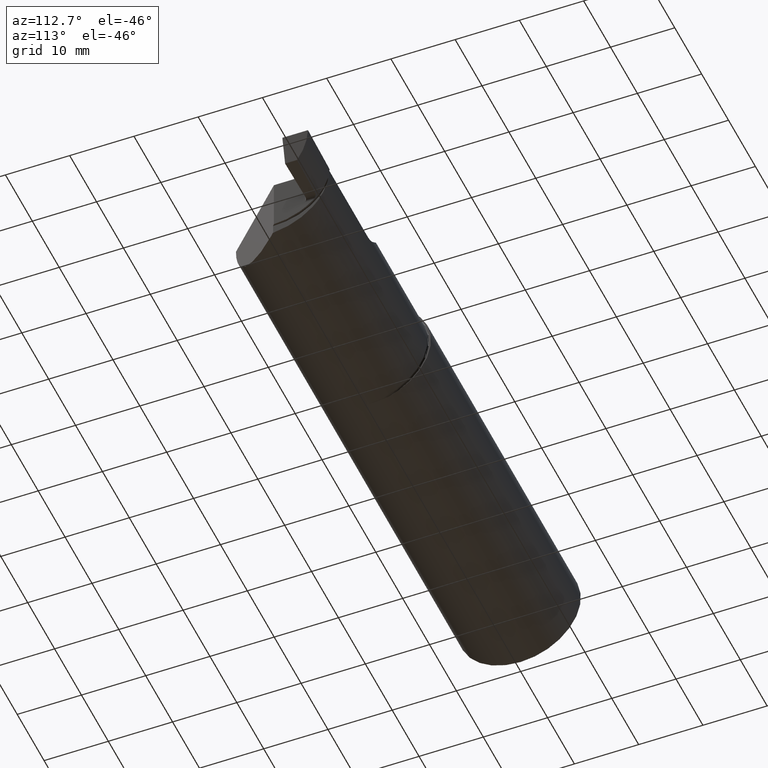
[diagram: clean part render]
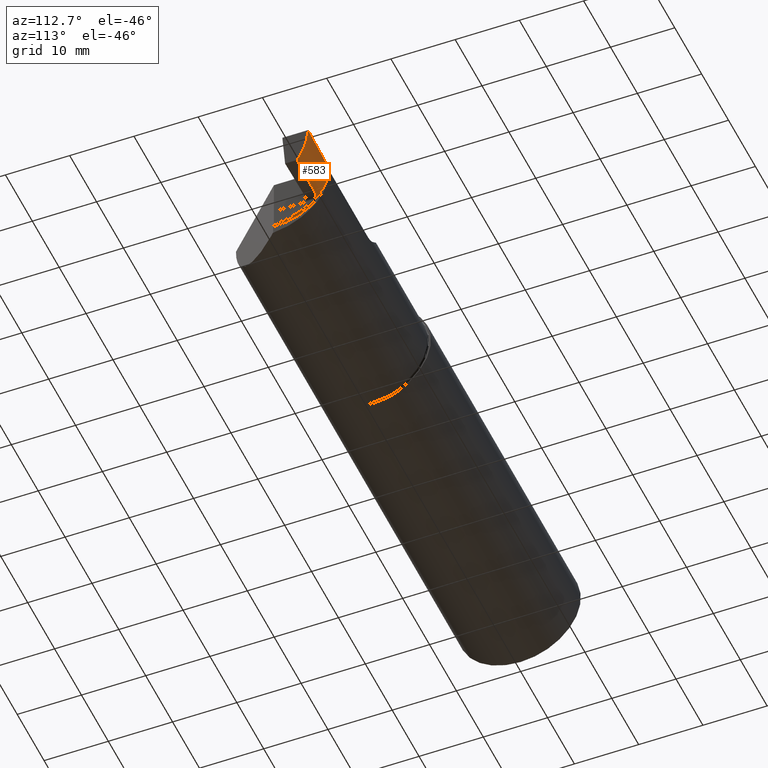
[diagram: same view with one face highlighted and labeled with its STEP entity id]
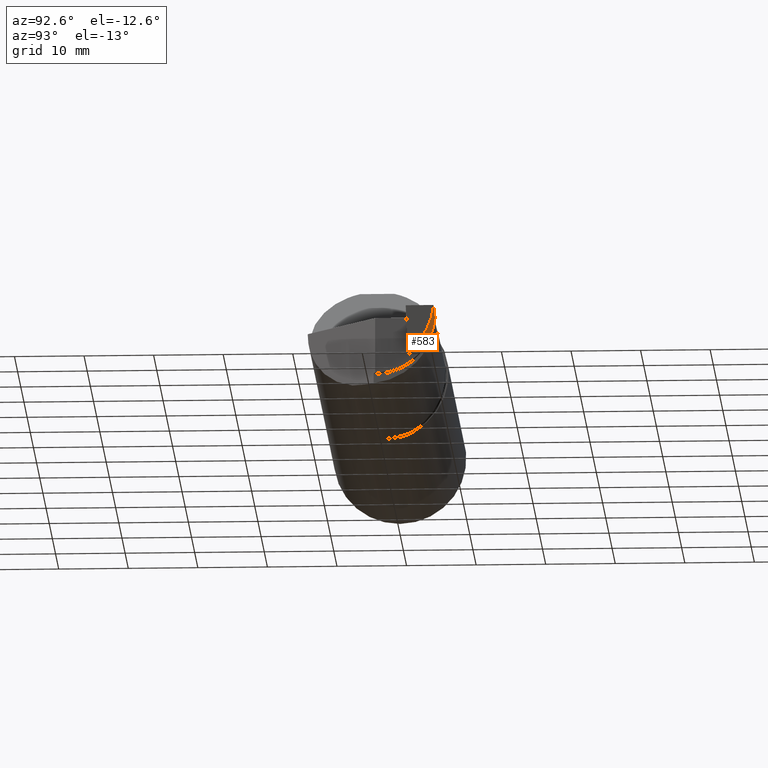
[diagram: same view with one face highlighted and labeled with its STEP entity id]
A machine part, auxiliary view. The second image highlights one B-rep face of the part: STEP entity #583.
A second angle (auxiliary view) of the same face is appended — the face is thin or edge-on in the first view.
In plain terms, the highlighted cylindrical surface (partial cylindrical patch) has radius 8.763 mm, axis along (-0.9998, -0.0175, -0).
Its self-contained STEP definition (entity closure, byte-faithful):
#1 = VERTEX_POINT ( 'NONE', #12 ) ;
#12 = CARTESIAN_POINT ( 'NONE',  ( 3.674900000000000055, 0.02505000000000018670, -0.3169667607336639770 ) ) ;
#16 = VECTOR ( 'NONE', #655, 39.37007874015748854 ) ;
#47 = ORIENTED_EDGE ( 'NONE', *, *, #893, .T. ) ;
#57 = CARTESIAN_POINT ( 'NONE',  ( 3.674900000000000055, 0.2007529595129726452, -0.2799386420960721655 ) ) ;
#63 = CARTESIAN_POINT ( 'NONE',  ( 3.692162470736613411, 0.2872280279564572991, -0.1909520701713809665 ) ) ;
#70 = CARTESIAN_POINT ( 'NONE',  ( 3.668018814154919482, 0.3584204735952503662, -0.04020578662791843283 ) ) ;
#71 = VERTEX_POINT ( 'NONE', #368 ) ;
#80 = CARTESIAN_POINT ( 'NONE',  ( 4.000000000000000000, 0.3698492383597805078, -8.579710105101827071E-16 ) ) ;
#88 = CARTESIAN_POINT ( 'NONE',  ( 4.346036695863296551, 0.03197506066377663048, 0.02800000000000001446 ) ) ;
#187 = ORIENTED_EDGE ( 'NONE', *, *, #271, .F. ) ;
#188 = CARTESIAN_POINT ( 'NONE',  ( 3.671139501632731950, 0.02019468631861981792, 0.02800000000000001446 ) ) ;
#196 = ORIENTED_EDGE ( 'NONE', *, *, #528, .T. ) ;
#201 = ORIENTED_EDGE ( 'NONE', *, *, #907, .T. ) ;
#218 = CARTESIAN_POINT ( 'NONE',  ( 3.672380531148330629, 0.02253053114833035095, -0.3169944607393478941 ) ) ;
#220 = CARTESIAN_POINT ( 'NONE',  ( 3.666422624578944411, 0.3550591457681474550, -0.05503370182980074632 ) ) ;
#226 =( BOUNDED_CURVE ( )  B_SPLINE_CURVE ( 3, ( #453, #1023, #57, #945 ),
 .UNSPECIFIED., .F., .F. ) 
 B_SPLINE_CURVE_WITH_KNOTS ( ( 4, 4 ),
 ( 1.584677771002642510, 2.360088669448001220 ),
 .UNSPECIFIED. ) 
 CURVE ( )  GEOMETRIC_REPRESENTATION_ITEM ( )  RATIONAL_B_SPLINE_CURVE ( ( 1.000000000000000000, 0.9505193239401498184, 0.9505193239401498184, 1.000000000000000000 ) ) 
 REPRESENTATION_ITEM ( '' )  );
#248 = CYLINDRICAL_SURFACE ( 'NONE', #1039, 0.3449999999999999734 ) ;
#262 = EDGE_CURVE ( 'NONE', #1006, #1, #486, .T. ) ;
#271 = EDGE_CURVE ( 'NONE', #1, #501, #226, .T. ) ;
#322 = DIRECTION ( 'NONE',  ( 0.01745240643726903712, -0.9998476951563913806, 0.000000000000000000 ) ) ;
#340 = EDGE_CURVE ( 'NONE', #523, #71, #482, .T. ) ;
#368 = CARTESIAN_POINT ( 'NONE',  ( 3.976670933428447796, 0.2929651983457154940, -0.1899999999999999467 ) ) ;
#373 = CARTESIAN_POINT ( 'NONE',  ( 3.668389146974766479, 0.3593930680788355314, -0.03522707299234034695 ) ) ;
#380 = CARTESIAN_POINT ( 'NONE',  ( 3.699899999999999967, 0.2881341437324823618, -0.1899999999999999745 ) ) ;
#382 = CARTESIAN_POINT ( 'NONE',  ( 3.991386371343247585, 0.3639856462570090212, -0.07015237578252282724 ) ) ;
#390 = CARTESIAN_POINT ( 'NONE',  ( 3.682951662067313503, 0.2825631292315248233, -0.1963381982667273817 ) ) ;
#412 = CARTESIAN_POINT ( 'NONE',  ( 4.340035478385360079, 0.3757845797128895882, 0.000000000000000000 ) ) ;
#423 = DIRECTION ( 'NONE',  ( 0.9998476951563914916, 0.01745240643726934937, -0.000000000000000000 ) ) ;
#436 = CIRCLE ( 'NONE', #589, 0.3449999999999999734 ) ;
#453 = CARTESIAN_POINT ( 'NONE',  ( 3.674900000000000055, 0.02505000000000018670, -0.3169667607336639770 ) ) ;
#458 = CARTESIAN_POINT ( 'NONE',  ( 3.674900000000000055, 0.02505000000000018670, -0.3169667607336639770 ) ) ;
#461 = CARTESIAN_POINT ( 'NONE',  ( 3.673640303505554261, 0.02379030350555431939, -0.3169839404006205563 ) ) ;
#482 = LINE ( 'NONE', #962, #596 ) ;
#486 =( BOUNDED_CURVE ( )  B_SPLINE_CURVE ( 3, ( #597, #218, #461, #458 ),
 .UNSPECIFIED., .F., .F. ) 
 B_SPLINE_CURVE_WITH_KNOTS ( ( 4, 4 ),
 ( 1.573915743438679016, 1.584677771002641400 ),
 .UNSPECIFIED. ) 
 CURVE ( )  GEOMETRIC_REPRESENTATION_ITEM ( )  RATIONAL_B_SPLINE_CURVE ( ( 1.000000000000000000, 0.9999903482535152932, 0.9999903482535152932, 1.000000000000000000 ) ) 
 REPRESENTATION_ITEM ( '' )  );
#492 = CARTESIAN_POINT ( 'NONE',  ( 4.000000000000000000, 0.3698492383597805078, -8.579710105101827071E-16 ) ) ;
#501 = VERTEX_POINT ( 'NONE', #600 ) ;
#505 = DIRECTION ( 'NONE',  ( 0.01745240643726903712, -0.9998476951563913806, 0.000000000000000000 ) ) ;
#514 = ORIENTED_EDGE ( 'NONE', *, *, #535, .T. ) ;
#523 = VERTEX_POINT ( 'NONE', #524 ) ;
#524 = CARTESIAN_POINT ( 'NONE',  ( 3.699899999999999967, 0.2881341437324823618, -0.1899999999999999745 ) ) ;
#528 = EDGE_CURVE ( 'NONE', #928, #771, #925, .T. ) ;
#534 = CARTESIAN_POINT ( 'NONE',  ( 3.671120719405338573, 0.02127071940533841604, -0.3169983214452270492 ) ) ;
#535 = EDGE_CURVE ( 'NONE', #523, #501, #849, .T. ) ;
#542 = CARTESIAN_POINT ( 'NONE',  ( 3.669292897679496068, 0.3619771523335102992, -0.02023052563417465990 ) ) ;
#547 = CARTESIAN_POINT ( 'NONE',  ( 3.667001602278190386, 0.3562519655896058679, -0.05011578601074451883 ) ) ;
#552 =( BOUNDED_CURVE ( )  B_SPLINE_CURVE ( 3, ( #957, #705, #382, #80 ),
 .UNSPECIFIED., .F., .F. ) 
 B_SPLINE_CURVE_WITH_KNOTS ( ( 4, 4 ),
 ( 1.028007330616670600, 1.630740202856560517 ),
 .UNSPECIFIED. ) 
 CURVE ( )  GEOMETRIC_REPRESENTATION_ITEM ( )  RATIONAL_B_SPLINE_CURVE ( ( 1.000000000000000000, 0.9699545252598007483, 0.9699545252598007483, 1.000000000000000000 ) ) 
 REPRESENTATION_ITEM ( '' )  );
#557 = CARTESIAN_POINT ( 'NONE',  ( 3.669803184662418616, 0.3640856315089771589, 1.002542740155892539E-15 ) ) ;
#583 = ADVANCED_FACE ( 'NONE', ( #800 ), #248, .T. ) ;
#589 = AXIS2_PLACEMENT_3D ( 'NONE', #188, #423, #322 ) ;
#596 = VECTOR ( 'NONE', #880, 39.37007874015748854 ) ;
#597 = CARTESIAN_POINT ( 'NONE',  ( 3.671120719405338573, 0.02127071940533841604, -0.3169983214452270492 ) ) ;
#600 = CARTESIAN_POINT ( 'NONE',  ( 3.674900000000000055, 0.2651976107801283233, -0.2149999999999998856 ) ) ;
#618 = CARTESIAN_POINT ( 'NONE',  ( 3.685643708434323429, 0.2844594738354356833, -0.1941450140508713673 ) ) ;
#655 = DIRECTION ( 'NONE',  ( 0.9998476951563914916, 0.01745240643726934937, 0.000000000000000000 ) ) ;
#697 = CARTESIAN_POINT ( 'NONE',  ( 3.669615578590435412, 0.3632555571514976545, -0.01015220002822416964 ) ) ;
#705 = CARTESIAN_POINT ( 'NONE',  ( 3.983369134120947841, 0.3375637752613999676, -0.1354475331161816287 ) ) ;
#706 = CARTESIAN_POINT ( 'NONE',  ( 3.674900000000000055, 0.2651976107801283233, -0.2149999999999998856 ) ) ;
#743 = ORIENTED_EDGE ( 'NONE', *, *, #262, .F. ) ;
#751 = LINE ( 'NONE', #412, #16 ) ;
#761 = EDGE_CURVE ( 'NONE', #71, #795, #552, .T. ) ;
#766 = EDGE_LOOP ( 'NONE', ( #847, #514, #187, #743, #47, #196, #201, #1031 ) ) ;
#771 = VERTEX_POINT ( 'NONE', #557 ) ;
#786 = CARTESIAN_POINT ( 'NONE',  ( 3.674899999999999611, 0.2706958363715930571, -0.2094596285831782645 ) ) ;
#795 = VERTEX_POINT ( 'NONE', #492 ) ;
#800 = FACE_OUTER_BOUND ( 'NONE', #766, .T. ) ;
#847 = ORIENTED_EDGE ( 'NONE', *, *, #340, .F. ) ;
#849 = B_SPLINE_CURVE_WITH_KNOTS ( 'NONE', 3,
 ( #380, #864, #63, #618, #390, #1030, #786, #706 ),
 .UNSPECIFIED., .F., .F.,
 ( 4, 2, 2, 4 ),
 ( 0.000000000000000000, 0.0002948786997554654231, 0.0005897573995109308461, 0.001179514799021883593 ),
 .UNSPECIFIED. ) ;
#860 = CARTESIAN_POINT ( 'NONE',  ( 3.669803184662418616, 0.3640856315089771589, 1.002542740155892539E-15 ) ) ;
#864 = CARTESIAN_POINT ( 'NONE',  ( 3.695967102916590807, 0.2880654947585354897, -0.1899999999999999467 ) ) ;
#880 = DIRECTION ( 'NONE',  ( 0.9998476951563914916, 0.01745240643726934937, 0.000000000000000000 ) ) ;
#893 = EDGE_CURVE ( 'NONE', #1006, #928, #436, .T. ) ;
#907 = EDGE_CURVE ( 'NONE', #771, #795, #751, .T. ) ;
#925 = B_SPLINE_CURVE_WITH_KNOTS ( 'NONE', 3,
 ( #939, #220, #547, #70, #373, #542, #697, #860 ),
 .UNSPECIFIED., .F., .F.,
 ( 4, 2, 2, 4 ),
 ( 2.107455411834244653E-05, 0.0004089594888980410551, 0.0007968444236777395958, 0.001572614293237136786 ),
 .UNSPECIFIED. ) ;
#928 = VERTEX_POINT ( 'NONE', #991 ) ;
#939 = CARTESIAN_POINT ( 'NONE',  ( 3.665316885198479202, 0.3537721584278776255, -0.05984740883518927662 ) ) ;
#945 = CARTESIAN_POINT ( 'NONE',  ( 3.674900000000000055, 0.2651976107801283233, -0.2149999999999998856 ) ) ;
#957 = CARTESIAN_POINT ( 'NONE',  ( 3.976670933428447796, 0.2929651983457154940, -0.1899999999999999467 ) ) ;
#962 = CARTESIAN_POINT ( 'NONE',  ( 4.341369979817319091, 0.2993310438796870643, -0.1899999999999999467 ) ) ;
#991 = CARTESIAN_POINT ( 'NONE',  ( 3.665316885198479202, 0.3537721584278776255, -0.05984740883518927662 ) ) ;
#1006 = VERTEX_POINT ( 'NONE', #534 ) ;
#1023 = CARTESIAN_POINT ( 'NONE',  ( 3.674900000000000055, 0.1165366773425573904, -0.3156969053827792804 ) ) ;
#1030 = CARTESIAN_POINT ( 'NONE',  ( 3.676652853334789306, 0.2759874778139403406, -0.2037480587285474265 ) ) ;
#1031 = ORIENTED_EDGE ( 'NONE', *, *, #761, .F. ) ;
#1036 = DIRECTION ( 'NONE',  ( -0.9998476951563916026, -0.01745240643726935284, -0.000000000000000000 ) ) ;
#1039 = AXIS2_PLACEMENT_3D ( 'NONE', #88, #1036, #505 ) ;